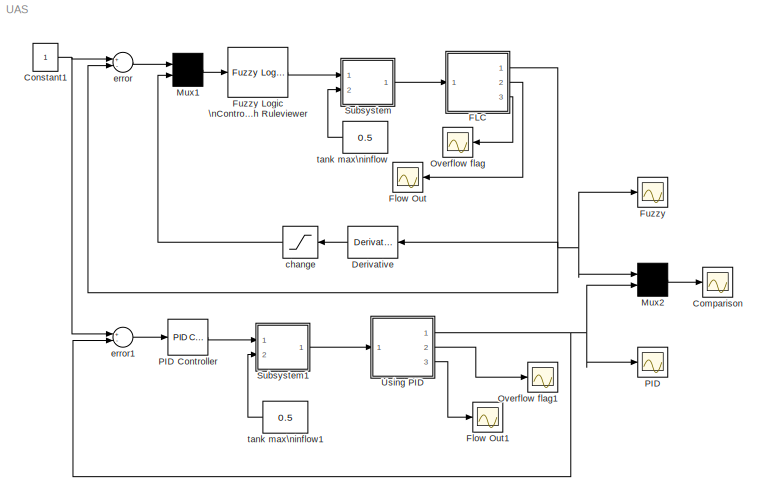
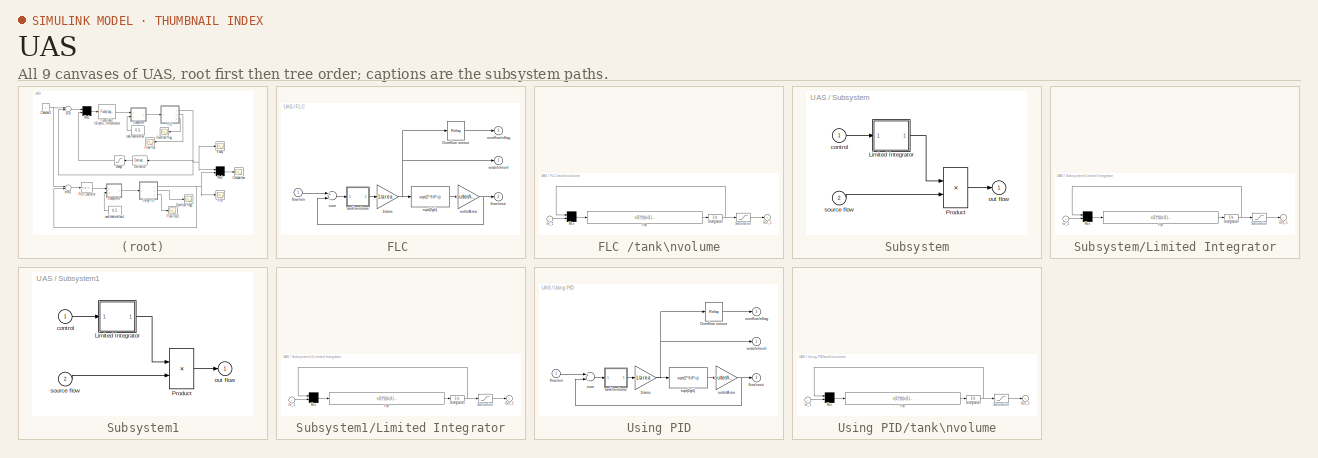
[diagram: thumbnail index - all 9 canvases of the model, root first then tree order]
MODEL UAS
KIND model
CONFIG PreLoadFcn = tank=readfis('tank');
BLOCK [Scope] Comparison
  NumInputPorts = 1
  Ports = [1]
  SID = 153
  ScopeSpecificationString = Simulink.scopes.TimeScopeBlockCfg('CurrentConfiguration', extmgr.ConfigurationSet(extmgr.Configuration('Core','General UI',true),extmgr.Configuration('Core','Source UI',true),extmgr.Configuration('Sources','WiredSimulink',true,'DataLoggingLimitDataPoints',true,'DataLoggingSaveFormat','Array','DataLoggingDecimation','1','DataLoggingDecimateData',true,'DataLoggingVariableName','ScopeData1'),extmgr.C...<+1820ch>
BLOCK [Constant] Constant1
  SID = 2
BLOCK [Derivative] Derivative
  SID = 4
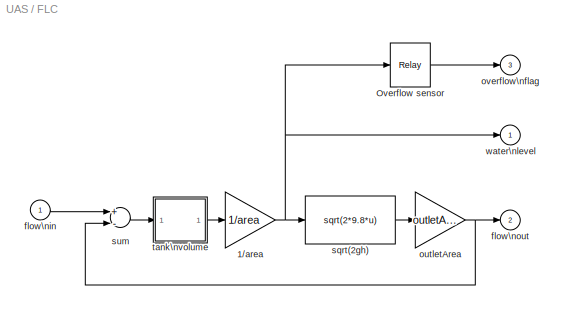
BLOCK [SubSystem] FLC 
  Ports = [1, 3]
  RequestExecContextInheritance = off
  SID = 96
  ShowPortLabels = none
  Variant = off
BLOCK [Gain] FLC /1//area
  Gain = 1/area
  SID = 98
BLOCK [Relay] FLC /Overflow sensor
  OffSwitchValue = ht - overflowLimit
  OnSwitchValue = ht - overflowLimit
  SID = 99
BLOCK [Inport] FLC /flow\nin
  IconDisplay = Port number
  SID = 97
BLOCK [Outport] FLC /flow\nout
  IconDisplay = Port number
  InitialOutput = 0
  Port = 2
  SID = 111
BLOCK [Gain] FLC /outletArea
  Gain = outletArea
  SID = 100
BLOCK [Outport] FLC /overflow\nflag
  IconDisplay = Port number
  InitialOutput = 0
  Port = 3
  SID = 112
BLOCK [Fcn] FLC /sqrt(2gh)
  Expr = sqrt(2*9.8*u)
  SID = 101
BLOCK [Sum] FLC /sum
  Inputs = +-
  Ports = [2, 1]
  SID = 102
BLOCK [SubSystem] FLC /tank\nvolume
  Ports = [1, 1]
  RequestExecContextInheritance = off
  SID = 103
  ShowPortLabels = none
  Variant = off
BLOCK [Fcn] FLC /tank\nvolume/Fcn
  Expr = u[2]*((((u[1]>lb)+(u[2]>=0))>0) * (((u[1]<ub)+(u[2]<=0))>0))
  SID = 105
BLOCK [Inport] FLC /tank\nvolume/In_1
  IconDisplay = Port number
  SID = 104
BLOCK [Integrator] FLC /tank\nvolume/Integrator
  InitialCondition = xi
  Ports = [1, 1]
  SID = 106
BLOCK [Mux] FLC /tank\nvolume/Mux
  Inputs = 2
  Ports = [2, 1]
  SID = 107
BLOCK [Outport] FLC /tank\nvolume/Out_1
  IconDisplay = Port number
  InitialOutput = 0
  SID = 109
BLOCK [Saturate] FLC /tank\nvolume/Saturation
  InputPortMap = u0
  LowerLimit = lb
  Ports = [1, 1]
  SID = 108
  UpperLimit = ub
BLOCK [Outport] FLC /water\nlevel
  IconDisplay = Port number
  InitialOutput = 0
  SID = 110
BLOCK [Scope] Flow Out
  NumInputPorts = 1
  Ports = [1]
  SID = 5
  ScopeSpecificationString = C++SS(StrPVP('Location','[207, 553, 469, 687]'),StrPVP('Open','off'),StrPVP('TickLabels','on'),MxPVP('AxesTitles',53,'struct(''axes1'',''%<SignalLabel>'')'),StrPVP('ShowLegends','off'),StrPVP('TimeRange','20.000000'),StrPVP('YMin','-2.000000'),StrPVP('YMax','2.000000'),StrPVP('SaveName','ScopeData5'),StrPVP('BlockParamSampleTime','0'),StrPVP('LimitDataPoints','on'),StrPVP('DataFormat','Array'),Str...<+60ch>
BLOCK [Scope] Flow Out1
  NumInputPorts = 1
  Ports = [1]
  SID = 147
  ScopeSpecificationString = Simulink.scopes.TimeScopeBlockCfg('CurrentConfiguration', extmgr.ConfigurationSet(extmgr.Configuration('Core','General UI',true),extmgr.Configuration('Core','Source UI',true),extmgr.Configuration('Sources','WiredSimulink',true,'DataLoggingVariableName','ScopeData1','DataLoggingLimitDataPoints',true,'DataLoggingSaveFormat','Array','DataLoggingDecimation','1','DataLoggingDecimateData',true),extmgr.C...<+1728ch>
BLOCK [Scope] Fuzzy
  NumInputPorts = 1
  Ports = [1]
  SID = 7
  ScopeSpecificationString = Simulink.scopes.TimeScopeBlockCfg('CurrentConfiguration', extmgr.ConfigurationSet(extmgr.Configuration('Core','General UI',true),extmgr.Configuration('Core','Source UI',true),extmgr.Configuration('Sources','WiredSimulink',true,'DataLoggingLimitDataPoints',true,'DataLoggingSaveFormat','Array','DataLoggingDecimation','1','DataLoggingDecimateData',true),extmgr.Configuration('Visuals','Time Domain',tr...<+2029ch>
BLOCK [Reference] Fuzzy Logic \nController \nwith Ruleviewer  REF=fuzblock/Fuzzy Logic \nController \nwith Ruleviewer  (lib defined in mdl_858b3b3e7478)
  Ports = [1, 1]
  SID = 8
  SourceBlock = fuzblock/Fuzzy Logic \nController \nwith Ruleviewer
  SourceProductBaseCode = FL
  SourceProductName = Fuzzy Logic Toolbox
  SourceType = FIS
  Ts = 0.05
  fismatrix = UAS
BLOCK [Mux] Mux1
  Inputs = 2
  Ports = [2, 1]
  SID = 9
BLOCK [Mux] Mux2
  Inputs = 2
  Ports = [2, 1]
  SID = 150
BLOCK [Scope] Overflow flag
  NumInputPorts = 1
  Ports = [1]
  SID = 12
  ScopeSpecificationString = Simulink.scopes.TimeScopeBlockCfg('CurrentConfiguration', extmgr.ConfigurationSet(extmgr.Configuration('Core','General UI',true),extmgr.Configuration('Core','Source UI',true),extmgr.Configuration('Sources','WiredSimulink',true,'DataLoggingVariableName','ScopeData6','DataLoggingLimitDataPoints',true,'DataLoggingSaveFormat','Array','DataLoggingDecimation','1','DataLoggingDecimateData',true),extmgr.C...<+1754ch>
BLOCK [Scope] Overflow flag1
  NumInputPorts = 1
  Ports = [1]
  SID = 148
  ScopeSpecificationString = Simulink.scopes.TimeScopeBlockCfg('CurrentConfiguration', extmgr.ConfigurationSet(extmgr.Configuration('Core','General UI',true),extmgr.Configuration('Core','Source UI',true),extmgr.Configuration('Sources','WiredSimulink',true,'DataLoggingVariableName','ScopeData2','DataLoggingLimitDataPoints',true,'DataLoggingSaveFormat','Array','DataLoggingDecimation','1','DataLoggingDecimateData',true),extmgr.C...<+1754ch>
BLOCK [Scope] PID
  NumInputPorts = 1
  Ports = [1]
  SID = 151
  ScopeSpecificationString = Simulink.scopes.TimeScopeBlockCfg('CurrentConfiguration', extmgr.ConfigurationSet(extmgr.Configuration('Core','General UI',true),extmgr.Configuration('Core','Source UI',true),extmgr.Configuration('Sources','WiredSimulink',true,'DataLoggingLimitDataPoints',true,'DataLoggingSaveFormat','Array','DataLoggingDecimation','1','DataLoggingDecimateData',true,'DataLoggingVariableName','ScopeData3'),extmgr.C...<+2068ch>
BLOCK [Reference] PID Controller  REF=simulink/Continuous/PID Controller
  AntiWindupMode = none
  Controller = PID
  ControllerParametersSource = internal
  D = 1
  DGainOutDataTypeStr = Inherit: Inherit via internal rule
  DOutDataTypeStr = Inherit: Inherit via internal rule
  DOutMax = []
  DOutMin = []
  DParamDataTypeStr = Inherit: Inherit via internal rule
  DParamMax = []
  DParamMin = []
  DProdOutDataTypeStr = Inherit: Inherit via internal rule
  DifferentiatorICPrevScaledInput = 0
  DifferentiatorOutDataTypeStr = Inherit: Inherit via internal rule
  DifferentiatorOutMax = []
  DifferentiatorOutMin = []
  ExternalReset = none
  FilterContinuousStateAttributes = ''
  FilterMethod = Forward Euler
  FilterOutDataTypeStr = Inherit: Inherit via internal rule
  FilterOutMax = []
  FilterOutMin = []
  FilterRTWStateStorageClass = Auto
  FilterStateMustResolveToSignalObject = off
  Form = Parallel
  I = 0
  IGainOutDataTypeStr = Inherit: Inherit via internal rule
  IOutDataTypeStr = Inherit: Inherit via internal rule
  IOutMax = []
  IOutMin = []
  IParamDataTypeStr = Inherit: Inherit via internal rule
  IParamMax = []
  IParamMin = []
  IProdOutDataTypeStr = Inherit: Inherit via internal rule
  IgnoreLimit = off
  InitialConditionForFilter = 0
  InitialConditionForIntegrator = 0
  InitialConditionSetting = State (most efficient)
  InitialConditionSource = internal
  IntegratorContinuousStateAttributes = ''
  IntegratorMethod = Forward Euler
  IntegratorOutDataTypeStr = Inherit: Inherit via internal rule
  IntegratorOutMax = []
  IntegratorOutMin = []
  IntegratorRTWStateStorageClass = Auto
  IntegratorStateMustResolveToSignalObject = off
  Kb = 1
  KbOutDataTypeStr = Inherit: Inherit via internal rule
  KbOutMax = []
  KbOutMin = []
  KbParamDataTypeStr = Inherit: Inherit via internal rule
  KbParamMax = []
  KbParamMin = []
  Kt = 1
  KtOutDataTypeStr = Inherit: Inherit via internal rule
  KtOutMax = []
  KtOutMin = []
  KtParamDataTypeStr = Inherit: Inherit via internal rule
  KtParamMax = []
  KtParamMin = []
  LimitOutput = off
  LinearizeAsGain = on
  LockScale = off
  LowerSaturationLimit = -inf
  N = 100
  NGainOutDataTypeStr = Inherit: Inherit via internal rule
  NOutDataTypeStr = Inherit: Inherit via internal rule
  NOutMax = []
  NOutMin = []
  NParamDataTypeStr = Inherit: Inherit via internal rule
  NParamMax = []
  NParamMin = []
  NProdOutDataTypeStr = Inherit: Inherit via internal rule
  P = 2.5
  PGainOutDataTypeStr = Inherit: Inherit via internal rule
  POutDataTypeStr = Inherit: Inherit via internal rule
  POutMax = []
  POutMin = []
  PParamDataTypeStr = Inherit: Inherit via internal rule
  PParamMax = []
  PParamMin = []
  PProdOutDataTypeStr = Inherit: Inherit via internal rule
  Ports = [1, 1]
  RndMeth = Floor
  SID = 116
  SampleTime = -1
  SaturateOnIntegerOverflow = off
  SaturationOutDataTypeStr = Inherit: Same as input
  SaturationOutMax = []
  SaturationOutMin = []
  SourceBlock = simulink/Continuous/PID Controller
  SourceProductBaseCode = SL
  SourceProductName = Simulink
  SourceType = PID 1dof
  SumAccumDataTypeStr = Inherit: Inherit via internal rule
  SumDAccumDataTypeStr = Inherit: Inherit via internal rule
  SumDOutDataTypeStr = Inherit: Inherit via internal rule
  SumDOutMax = []
  SumDOutMin = []
  SumI1AccumDataTypeStr = Inherit: Inherit via internal rule
  SumI1OutDataTypeStr = Inherit: Inherit via internal rule
  SumI1OutMax = []
  SumI1OutMin = []
  SumI2AccumDataTypeStr = Inherit: Inherit via internal rule
  SumI2OutDataTypeStr = Inherit: Inherit via internal rule
  SumI2OutMax = []
  SumI2OutMin = []
  SumI3AccumDataTypeStr = Inherit: Inherit via internal rule
  SumI3OutDataTypeStr = Inherit: Inherit via internal rule
  SumI3OutMax = []
  SumI3OutMin = []
  SumOutDataTypeStr = Inherit: Inherit via internal rule
  SumOutMax = []
  SumOutMin = []
  TimeDomain = Continuous-time
  TrackingMode = off
  UpperSaturationLimit = inf
  UseFilter = off
  ZeroCross = on
BLOCK [SubSystem] Subsystem
  Ports = [2, 1]
  RequestExecContextInheritance = off
  SID = 16
  ShowPortLabels = none
  Variant = off
BLOCK [SubSystem] Subsystem/Limited Integrator
  Ports = [1, 1]
  RequestExecContextInheritance = off
  SID = 19
  ShowPortLabels = none
  Variant = off
BLOCK [Fcn] Subsystem/Limited Integrator/Fcn
  Expr = u[2]*((((u[1]>lb)+(u[2]>=0))>0) * (((u[1]<ub)+(u[2]<=0))>0))
  SID = 21
BLOCK [Inport] Subsystem/Limited Integrator/In_1
  IconDisplay = Port number
  SID = 20
BLOCK [Integrator] Subsystem/Limited Integrator/Integrator
  InitialCondition = xi
  Ports = [1, 1]
  SID = 22
BLOCK [Mux] Subsystem/Limited Integrator/Mux
  Inputs = 2
  Ports = [2, 1]
  SID = 23
BLOCK [Outport] Subsystem/Limited Integrator/Out_1
  IconDisplay = Port number
  InitialOutput = 0
  SID = 25
BLOCK [Saturate] Subsystem/Limited Integrator/Saturation
  InputPortMap = u0
  LowerLimit = lb
  Ports = [1, 1]
  SID = 24
  UpperLimit = ub
BLOCK [Product] Subsystem/Product
  Ports = [2, 1]
  SID = 26
BLOCK [Inport] Subsystem/control
  IconDisplay = Port number
  SID = 17
BLOCK [Outport] Subsystem/out flow
  IconDisplay = Port number
  InitialOutput = 0
  SID = 27
BLOCK [Inport] Subsystem/source flow
  IconDisplay = Port number
  Port = 2
  SID = 18
BLOCK [SubSystem] Subsystem1
  Ports = [2, 1]
  RequestExecContextInheritance = off
  SID = 117
  ShowPortLabels = none
  Variant = off
BLOCK [SubSystem] Subsystem1/Limited Integrator
  Ports = [1, 1]
  RequestExecContextInheritance = off
  SID = 120
  ShowPortLabels = none
  Variant = off
BLOCK [Fcn] Subsystem1/Limited Integrator/Fcn
  Expr = u[2]*((((u[1]>lb)+(u[2]>=0))>0) * (((u[1]<ub)+(u[2]<=0))>0))
  SID = 122
BLOCK [Inport] Subsystem1/Limited Integrator/In_1
  IconDisplay = Port number
  SID = 121
BLOCK [Integrator] Subsystem1/Limited Integrator/Integrator
  InitialCondition = xi
  Ports = [1, 1]
  SID = 123
BLOCK [Mux] Subsystem1/Limited Integrator/Mux
  Inputs = 2
  Ports = [2, 1]
  SID = 124
BLOCK [Outport] Subsystem1/Limited Integrator/Out_1
  IconDisplay = Port number
  InitialOutput = 0
  SID = 126
BLOCK [Saturate] Subsystem1/Limited Integrator/Saturation
  InputPortMap = u0
  LowerLimit = lb
  Ports = [1, 1]
  SID = 125
  UpperLimit = ub
BLOCK [Product] Subsystem1/Product
  Ports = [2, 1]
  SID = 127
BLOCK [Inport] Subsystem1/control
  IconDisplay = Port number
  SID = 118
BLOCK [Outport] Subsystem1/out flow
  IconDisplay = Port number
  InitialOutput = 0
  SID = 128
BLOCK [Inport] Subsystem1/source flow
  IconDisplay = Port number
  Port = 2
  SID = 119
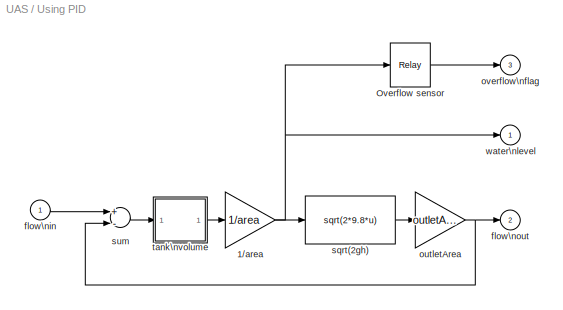
BLOCK [SubSystem] Using PID
  Ports = [1, 3]
  RequestExecContextInheritance = off
  SID = 130
  ShowPortLabels = none
  Variant = off
BLOCK [Gain] Using PID/1//area
  Gain = 1/area
  SID = 132
BLOCK [Relay] Using PID/Overflow sensor
  OffSwitchValue = ht - overflowLimit
  OnSwitchValue = ht - overflowLimit
  SID = 133
BLOCK [Inport] Using PID/flow\nin
  IconDisplay = Port number
  SID = 131
BLOCK [Outport] Using PID/flow\nout
  IconDisplay = Port number
  InitialOutput = 0
  Port = 2
  SID = 145
BLOCK [Gain] Using PID/outletArea
  Gain = outletArea
  SID = 134
BLOCK [Outport] Using PID/overflow\nflag
  IconDisplay = Port number
  InitialOutput = 0
  Port = 3
  SID = 146
BLOCK [Fcn] Using PID/sqrt(2gh)
  Expr = sqrt(2*9.8*u)
  SID = 135
BLOCK [Sum] Using PID/sum
  Inputs = +-
  Ports = [2, 1]
  SID = 136
BLOCK [SubSystem] Using PID/tank\nvolume
  Ports = [1, 1]
  RequestExecContextInheritance = off
  SID = 137
  ShowPortLabels = none
  Variant = off
BLOCK [Fcn] Using PID/tank\nvolume/Fcn
  Expr = u[2]*((((u[1]>lb)+(u[2]>=0))>0) * (((u[1]<ub)+(u[2]<=0))>0))
  SID = 139
BLOCK [Inport] Using PID/tank\nvolume/In_1
  IconDisplay = Port number
  SID = 138
BLOCK [Integrator] Using PID/tank\nvolume/Integrator
  InitialCondition = xi
  Ports = [1, 1]
  SID = 140
BLOCK [Mux] Using PID/tank\nvolume/Mux
  Inputs = 2
  Ports = [2, 1]
  SID = 141
BLOCK [Outport] Using PID/tank\nvolume/Out_1
  IconDisplay = Port number
  InitialOutput = 0
  SID = 143
BLOCK [Saturate] Using PID/tank\nvolume/Saturation
  InputPortMap = u0
  LowerLimit = lb
  Ports = [1, 1]
  SID = 142
  UpperLimit = ub
BLOCK [Outport] Using PID/water\nlevel
  IconDisplay = Port number
  InitialOutput = 0
  SID = 144
BLOCK [Saturate] change
  InputPortMap = u0
  LowerLimit = -0.1
  Ports = [1, 1]
  SID = 75
  UpperLimit = 0.1
BLOCK [Sum] error
  Inputs = +-
  Ports = [2, 1]
  SID = 76
BLOCK [Sum] error1
  Inputs = +-
  Ports = [2, 1]
  SID = 115
BLOCK [Constant] tank max\ninflow
  SID = 113
  Value = 0.5
BLOCK [Constant] tank max\ninflow1
  SID = 129
  Value = 0.5
NET Constant1:1 -> error1:1, error:1
LINE Derivative:1 -> change:1
NET FLC /1//area:1 -> FLC /Overflow sensor:1, FLC /sqrt(2gh):1, FLC /water\nlevel:1
LINE FLC /Overflow sensor:1 -> FLC /overflow\nflag:1
LINE FLC /flow\nin:1 -> FLC /sum:1
NET FLC /outletArea:1 -> FLC /flow\nout:1, FLC /sum:2
LINE FLC /sqrt(2gh):1 -> FLC /outletArea:1
LINE FLC /sum:1 -> FLC /tank\nvolume:1
LINE FLC /tank\nvolume/Fcn:1 -> FLC /tank\nvolume/Integrator:1
LINE FLC /tank\nvolume/In_1:1 -> FLC /tank\nvolume/Mux:2
NET FLC /tank\nvolume/Integrator:1 -> FLC /tank\nvolume/Mux:1, FLC /tank\nvolume/Saturation:1
LINE FLC /tank\nvolume/Mux:1 -> FLC /tank\nvolume/Fcn:1
LINE FLC /tank\nvolume/Saturation:1 -> FLC /tank\nvolume/Out_1:1
LINE FLC /tank\nvolume:1 -> FLC /1//area:1
NET FLC :1 -> Derivative:1, Fuzzy:1, Mux2:1, error:2
LINE FLC :2 -> Flow Out:1
LINE FLC :3 -> Overflow flag:1
LINE Fuzzy Logic \nController \nwith Ruleviewer:1 -> Subsystem:1
LINE Mux1:1 -> Fuzzy Logic \nController \nwith Ruleviewer:1
LINE Mux2:1 -> Comparison:1
LINE PID Controller:1 -> Subsystem1:1
LINE Subsystem/Limited Integrator/Fcn:1 -> Subsystem/Limited Integrator/Integrator:1
LINE Subsystem/Limited Integrator/In_1:1 -> Subsystem/Limited Integrator/Mux:2
NET Subsystem/Limited Integrator/Integrator:1 -> Subsystem/Limited Integrator/Mux:1, Subsystem/Limited Integrator/Saturation:1
LINE Subsystem/Limited Integrator/Mux:1 -> Subsystem/Limited Integrator/Fcn:1
LINE Subsystem/Limited Integrator/Saturation:1 -> Subsystem/Limited Integrator/Out_1:1
LINE Subsystem/Limited Integrator:1 -> Subsystem/Product:1
LINE Subsystem/Product:1 -> Subsystem/out flow:1
LINE Subsystem/control:1 -> Subsystem/Limited Integrator:1
LINE Subsystem/source flow:1 -> Subsystem/Product:2
LINE Subsystem1/Limited Integrator/Fcn:1 -> Subsystem1/Limited Integrator/Integrator:1
LINE Subsystem1/Limited Integrator/In_1:1 -> Subsystem1/Limited Integrator/Mux:2
NET Subsystem1/Limited Integrator/Integrator:1 -> Subsystem1/Limited Integrator/Mux:1, Subsystem1/Limited Integrator/Saturation:1
LINE Subsystem1/Limited Integrator/Mux:1 -> Subsystem1/Limited Integrator/Fcn:1
LINE Subsystem1/Limited Integrator/Saturation:1 -> Subsystem1/Limited Integrator/Out_1:1
LINE Subsystem1/Limited Integrator:1 -> Subsystem1/Product:1
LINE Subsystem1/Product:1 -> Subsystem1/out flow:1
LINE Subsystem1/control:1 -> Subsystem1/Limited Integrator:1
LINE Subsystem1/source flow:1 -> Subsystem1/Product:2
LINE Subsystem1:1 -> Using PID:1
LINE Subsystem:1 -> FLC :1
NET Using PID/1//area:1 -> Using PID/Overflow sensor:1, Using PID/sqrt(2gh):1, Using PID/water\nlevel:1
LINE Using PID/Overflow sensor:1 -> Using PID/overflow\nflag:1
LINE Using PID/flow\nin:1 -> Using PID/sum:1
NET Using PID/outletArea:1 -> Using PID/flow\nout:1, Using PID/sum:2
LINE Using PID/sqrt(2gh):1 -> Using PID/outletArea:1
LINE Using PID/sum:1 -> Using PID/tank\nvolume:1
LINE Using PID/tank\nvolume/Fcn:1 -> Using PID/tank\nvolume/Integrator:1
LINE Using PID/tank\nvolume/In_1:1 -> Using PID/tank\nvolume/Mux:2
NET Using PID/tank\nvolume/Integrator:1 -> Using PID/tank\nvolume/Mux:1, Using PID/tank\nvolume/Saturation:1
LINE Using PID/tank\nvolume/Mux:1 -> Using PID/tank\nvolume/Fcn:1
LINE Using PID/tank\nvolume/Saturation:1 -> Using PID/tank\nvolume/Out_1:1
LINE Using PID/tank\nvolume:1 -> Using PID/1//area:1
NET Using PID:1 -> Mux2:2, PID:1, error1:2
LINE Using PID:2 -> Overflow flag1:1
LINE Using PID:3 -> Flow Out1:1
LINE change:1 -> Mux1:2
LINE error1:1 -> PID Controller:1
LINE error:1 -> Mux1:1
LINE tank max\ninflow1:1 -> Subsystem1:2
LINE tank max\ninflow:1 -> Subsystem:2
note: NET lines group one-source signal fan-out (src -> all destinations, sorted); 1:1 wires keep LINE
